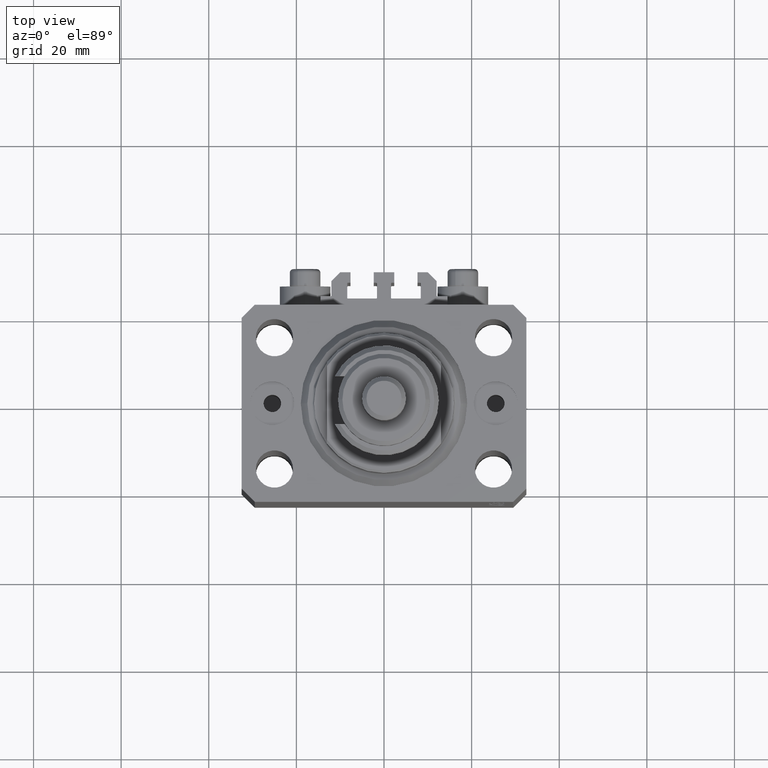
[diagram: clean part render]
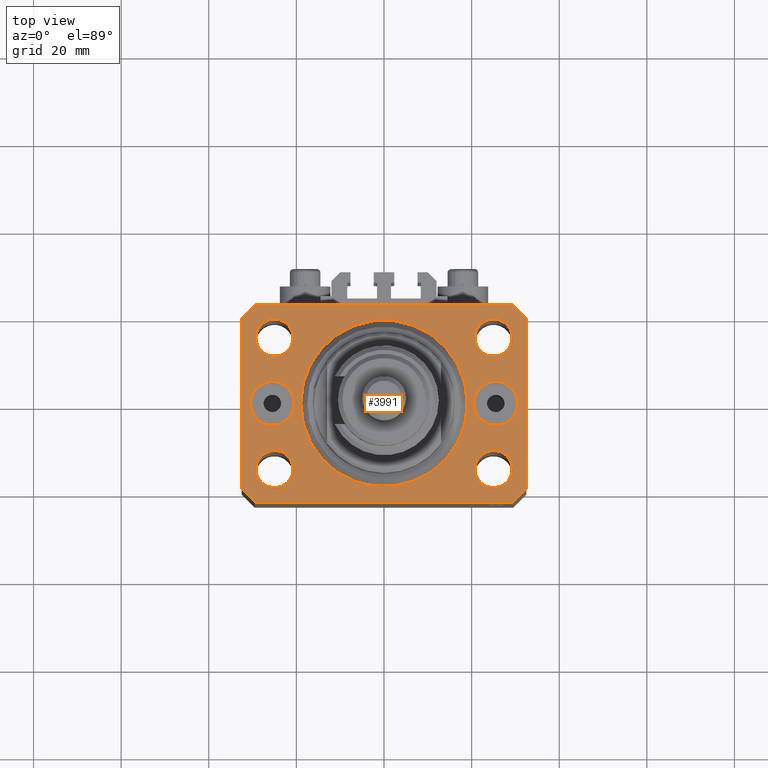
[diagram: same view with one face highlighted and labeled with its STEP entity id]
A machine part, top view. The second image highlights one B-rep face of the part: STEP entity #3991.
In plain terms, the highlighted planar face has unit normal (0, 0, 1).
Its self-contained STEP definition (entity closure, byte-faithful):
#62 = CARTESIAN_POINT ( 'NONE',  ( 24.99999999999999289, -15.00000000000000355, 0.000000000000000000 ) ) ;
#383 = LINE ( 'NONE', #4661, #46369 ) ;
#991 = FACE_BOUND ( 'NONE', #11088, .T. ) ;
#1139 = DIRECTION ( 'NONE',  ( 0.000000000000000000, 0.000000000000000000, 1.000000000000000000 ) ) ;
#1179 = EDGE_LOOP ( 'NONE', ( #25878, #42165 ) ) ;
#1402 = VERTEX_POINT ( 'NONE', #41577 ) ;
#1626 = DIRECTION ( 'NONE',  ( 0.000000000000000000, 0.000000000000000000, 1.000000000000000000 ) ) ;
#1692 = DIRECTION ( 'NONE',  ( -1.000000000000000000, -3.528251137580330676E-16, 0.000000000000000000 ) ) ;
#2006 = CIRCLE ( 'NONE', #43100, 4.250000000021375790 ) ;
#2138 = ORIENTED_EDGE ( 'NONE', *, *, #2377, .T. ) ;
#2377 = EDGE_CURVE ( 'NONE', #22399, #35281, #16061, .T. ) ;
#2657 = CIRCLE ( 'NONE', #35718, 4.249999999976314058 ) ;
#2756 = CARTESIAN_POINT ( 'NONE',  ( -20.74999999997862687, 14.99999999999999645, 0.000000000000000000 ) ) ;
#2982 = DIRECTION ( 'NONE',  ( 0.000000000000000000, 0.000000000000000000, 1.000000000000000000 ) ) ;
#3144 = AXIS2_PLACEMENT_3D ( 'NONE', #48257, #32815, #36100 ) ;
#3555 = EDGE_CURVE ( 'NONE', #5678, #45714, #2657, .T. ) ;
#3629 = CARTESIAN_POINT ( 'NONE',  ( -32.49999999999650413, -19.49999999999949907, 0.000000000000000000 ) ) ;
#3694 = EDGE_CURVE ( 'NONE', #45714, #5678, #24413, .T. ) ;
#3991 = ADVANCED_FACE ( 'NONE', ( #23225, #38668, #991, #32571, #17154, #32067, #43446, #20428 ), #16658, .T. ) ;
#4147 = DIRECTION ( 'NONE',  ( 0.000000000000000000, -0.000000000000000000, -1.000000000000000000 ) ) ;
#4450 = CARTESIAN_POINT ( 'NONE',  ( -29.49999999999650413, 22.49999999999949907, 0.000000000000000000 ) ) ;
#4661 = CARTESIAN_POINT ( 'NONE',  ( 32.49999999999651124, -19.49999999999949196, 0.000000000000000000 ) ) ;
#4893 = ORIENTED_EDGE ( 'NONE', *, *, #31744, .F. ) ;
#5361 = ORIENTED_EDGE ( 'NONE', *, *, #37109, .T. ) ;
#5675 = DIRECTION ( 'NONE',  ( 0.000000000000000000, -1.000000000000000000, 0.000000000000000000 ) ) ;
#5678 = VERTEX_POINT ( 'NONE', #31919 ) ;
#5787 = DIRECTION ( 'NONE',  ( 0.7071067811865483499, 0.7071067811865466846, 0.000000000000000000 ) ) ;
#6114 = CIRCLE ( 'NONE', #34351, 19.00000000000000000 ) ;
#6516 = DIRECTION ( 'NONE',  ( 1.000000000000000000, 0.000000000000000000, 0.000000000000000000 ) ) ;
#6607 = CIRCLE ( 'NONE', #45328, 4.250000000040370374 ) ;
#6843 = VERTEX_POINT ( 'NONE', #44894 ) ;
#7366 = VERTEX_POINT ( 'NONE', #18105 ) ;
#8295 = VERTEX_POINT ( 'NONE', #37826 ) ;
#8367 = DIRECTION ( 'NONE',  ( 1.000000000000000000, 0.000000000000000000, 0.000000000000000000 ) ) ;
#8445 = EDGE_CURVE ( 'NONE', #41649, #49494, #25383, .T. ) ;
#8931 = ORIENTED_EDGE ( 'NONE', *, *, #23326, .T. ) ;
#9117 = CIRCLE ( 'NONE', #16357, 5.000000000003342215 ) ;
#9327 = CARTESIAN_POINT ( 'NONE',  ( 29.24999999995729283, 14.99999999999999289, 0.000000000000000000 ) ) ;
#9508 = CARTESIAN_POINT ( 'NONE',  ( -19.00000000000000000, 2.326828918379970970E-15, 0.000000000000000000 ) ) ;
#9523 = CIRCLE ( 'NONE', #32942, 5.000000000003342215 ) ;
#9627 = VERTEX_POINT ( 'NONE', #17240 ) ;
#9725 = ORIENTED_EDGE ( 'NONE', *, *, #22989, .F. ) ;
#10425 = DIRECTION ( 'NONE',  ( 0.000000000000000000, 0.000000000000000000, 1.000000000000000000 ) ) ;
#10455 = DIRECTION ( 'NONE',  ( 1.000000000000000000, 0.000000000000000000, 0.000000000000000000 ) ) ;
#10630 = CARTESIAN_POINT ( 'NONE',  ( -30.50000000000333955, 6.123233995740857512E-16, 0.000000000000000000 ) ) ;
#11088 = EDGE_LOOP ( 'NONE', ( #41118, #28239 ) ) ;
#11191 = CIRCLE ( 'NONE', #3144, 19.00000000000000000 ) ;
#11502 = DIRECTION ( 'NONE',  ( 0.000000000000000000, -0.000000000000000000, -1.000000000000000000 ) ) ;
#11742 = ORIENTED_EDGE ( 'NONE', *, *, #43704, .F. ) ;
#11754 = CARTESIAN_POINT ( 'NONE',  ( 25.50000000000000000, 0.000000000000000000, 0.000000000000000000 ) ) ;
#11895 = VERTEX_POINT ( 'NONE', #26231 ) ;
#12370 = CARTESIAN_POINT ( 'NONE',  ( -20.74999999995962341, -15.00000000000000355, 0.000000000000000000 ) ) ;
#13051 = CARTESIAN_POINT ( 'NONE',  ( 29.49999999999707967, 22.49999999999952038, 0.000000000000000000 ) ) ;
#13055 = VERTEX_POINT ( 'NONE', #40951 ) ;
#13110 = DIRECTION ( 'NONE',  ( 1.000000000000000000, 0.000000000000000000, 0.000000000000000000 ) ) ;
#13376 = VERTEX_POINT ( 'NONE', #16874 ) ;
#13529 = ORIENTED_EDGE ( 'NONE', *, *, #47016, .F. ) ;
#13670 = EDGE_CURVE ( 'NONE', #6843, #15071, #35050, .T. ) ;
#14118 = AXIS2_PLACEMENT_3D ( 'NONE', #28951, #47671, #35773 ) ;
#15059 = AXIS2_PLACEMENT_3D ( 'NONE', #41545, #45089, #10455 ) ;
#15071 = VERTEX_POINT ( 'NONE', #12370 ) ;
#15472 = DIRECTION ( 'NONE',  ( 0.000000000000000000, 0.000000000000000000, 1.000000000000000000 ) ) ;
#15795 = DIRECTION ( 'NONE',  ( 1.000000000000000000, 0.000000000000000000, 0.000000000000000000 ) ) ;
#16061 = LINE ( 'NONE', #4450, #28397 ) ;
#16289 = VERTEX_POINT ( 'NONE', #28354 ) ;
#16357 = AXIS2_PLACEMENT_3D ( 'NONE', #30505, #45683, #19363 ) ;
#16603 = ORIENTED_EDGE ( 'NONE', *, *, #3555, .F. ) ;
#16658 = PLANE ( 'NONE',  #41362 ) ;
#16874 = CARTESIAN_POINT ( 'NONE',  ( 32.49999999999651124, -19.49999999999949196, 0.000000000000000000 ) ) ;
#16972 = ORIENTED_EDGE ( 'NONE', *, *, #24731, .F. ) ;
#17154 = FACE_BOUND ( 'NONE', #22194, .T. ) ;
#17155 = DIRECTION ( 'NONE',  ( 0.000000000000000000, 0.000000000000000000, 1.000000000000000000 ) ) ;
#17240 = CARTESIAN_POINT ( 'NONE',  ( -29.25000000002137668, 14.99999999999999645, 0.000000000000000000 ) ) ;
#18105 = CARTESIAN_POINT ( 'NONE',  ( -20.49999999999665690, 0.000000000000000000, 0.000000000000000000 ) ) ;
#18689 = CIRCLE ( 'NONE', #25148, 4.249999999957291053 ) ;
#19103 = CARTESIAN_POINT ( 'NONE',  ( 32.49999999999702993, 19.49999999999945999, 0.000000000000000000 ) ) ;
#19363 = DIRECTION ( 'NONE',  ( 1.000000000000000000, 0.000000000000000000, 0.000000000000000000 ) ) ;
#20213 = VECTOR ( 'NONE', #1692, 1000.000000000000000 ) ;
#20428 = FACE_BOUND ( 'NONE', #1179, .T. ) ;
#21028 = DIRECTION ( 'NONE',  ( 1.000000000000000000, 0.000000000000000000, 0.000000000000000000 ) ) ;
#21321 = CARTESIAN_POINT ( 'NONE',  ( 32.49999999999702993, 19.49999999999945999, 0.000000000000000000 ) ) ;
#22194 = EDGE_LOOP ( 'NONE', ( #11742, #41834 ) ) ;
#22399 = VERTEX_POINT ( 'NONE', #25340 ) ;
#22989 = EDGE_CURVE ( 'NONE', #16289, #23233, #11191, .T. ) ;
#23097 = CARTESIAN_POINT ( 'NONE',  ( 25.50000000000000000, 0.000000000000000000, 0.000000000000000000 ) ) ;
#23225 = FACE_OUTER_BOUND ( 'NONE', #32428, .T. ) ;
#23233 = VERTEX_POINT ( 'NONE', #9508 ) ;
#23326 = EDGE_CURVE ( 'NONE', #11895, #13055, #29951, .T. ) ;
#24097 = VECTOR ( 'NONE', #5787, 1000.000000000000000 ) ;
#24099 = CARTESIAN_POINT ( 'NONE',  ( 25.00000000000000000, 14.99999999999999289, 0.000000000000000000 ) ) ;
#24413 = CIRCLE ( 'NONE', #33318, 4.249999999976314058 ) ;
#24442 = EDGE_LOOP ( 'NONE', ( #16972, #13529 ) ) ;
#24731 = EDGE_CURVE ( 'NONE', #7366, #36887, #9523, .T. ) ;
#24980 = CARTESIAN_POINT ( 'NONE',  ( 29.49999999999650413, -22.49999999999949196, 0.000000000000000000 ) ) ;
#25148 = AXIS2_PLACEMENT_3D ( 'NONE', #24099, #1139, #35495 ) ;
#25340 = CARTESIAN_POINT ( 'NONE',  ( -29.49999999999650413, 22.49999999999949907, 0.000000000000000000 ) ) ;
#25371 = CIRCLE ( 'NONE', #27761, 4.249999999957291053 ) ;
#25383 = LINE ( 'NONE', #21321, #27763 ) ;
#25715 = CARTESIAN_POINT ( 'NONE',  ( 25.00000000000000000, 14.99999999999999289, 0.000000000000000000 ) ) ;
#25878 = ORIENTED_EDGE ( 'NONE', *, *, #40405, .T. ) ;
#25909 = CARTESIAN_POINT ( 'NONE',  ( -29.49999999999650413, -22.49999999999949907, 0.000000000000000000 ) ) ;
#25971 = EDGE_LOOP ( 'NONE', ( #48247, #4893 ) ) ;
#26080 = CARTESIAN_POINT ( 'NONE',  ( 20.75000000004271072, 14.99999999999999289, 0.000000000000000000 ) ) ;
#26231 = CARTESIAN_POINT ( 'NONE',  ( -29.49999999999650413, -22.49999999999949907, 0.000000000000000000 ) ) ;
#26948 = DIRECTION ( 'NONE',  ( -0.7071067811865474617, -0.7071067811865474617, 0.000000000000000000 ) ) ;
#27332 = ORIENTED_EDGE ( 'NONE', *, *, #41467, .T. ) ;
#27761 = AXIS2_PLACEMENT_3D ( 'NONE', #25715, #36346, #6516 ) ;
#27763 = VECTOR ( 'NONE', #36516, 1000.000000000000000 ) ;
#28239 = ORIENTED_EDGE ( 'NONE', *, *, #34856, .F. ) ;
#28354 = CARTESIAN_POINT ( 'NONE',  ( 19.00000000000000000, 0.000000000000000000, 0.000000000000000000 ) ) ;
#28397 = VECTOR ( 'NONE', #26948, 1000.000000000000114 ) ;
#28951 = CARTESIAN_POINT ( 'NONE',  ( -24.99999999999999289, -15.00000000000000355, 0.000000000000000000 ) ) ;
#29162 = CARTESIAN_POINT ( 'NONE',  ( -25.00000000000000000, 14.99999999999999645, 0.000000000000000000 ) ) ;
#29630 = CARTESIAN_POINT ( 'NONE',  ( -25.50000000000000000, 0.000000000000000000, 0.000000000000000000 ) ) ;
#29951 = LINE ( 'NONE', #25909, #34624 ) ;
#30410 = DIRECTION ( 'NONE',  ( 0.7071067811865474617, -0.7071067811865474617, 0.000000000000000000 ) ) ;
#30505 = CARTESIAN_POINT ( 'NONE',  ( -25.50000000000000000, 0.000000000000000000, 0.000000000000000000 ) ) ;
#30770 = VECTOR ( 'NONE', #5675, 1000.000000000000000 ) ;
#30879 = DIRECTION ( 'NONE',  ( 1.000000000000000000, 0.000000000000000000, 0.000000000000000000 ) ) ;
#31225 = ORIENTED_EDGE ( 'NONE', *, *, #50055, .T. ) ;
#31361 = EDGE_CURVE ( 'NONE', #23233, #16289, #6114, .T. ) ;
#31687 = DIRECTION ( 'NONE',  ( 1.334402673828349134E-14, 1.000000000000000000, 0.000000000000000000 ) ) ;
#31744 = EDGE_CURVE ( 'NONE', #9627, #38039, #40055, .T. ) ;
#31813 = CARTESIAN_POINT ( 'NONE',  ( 0.000000000000000000, 0.000000000000000000, 0.000000000000000000 ) ) ;
#31919 = CARTESIAN_POINT ( 'NONE',  ( 29.24999999997631051, -15.00000000000000355, 0.000000000000000000 ) ) ;
#31943 = ORIENTED_EDGE ( 'NONE', *, *, #8445, .T. ) ;
#32067 = FACE_BOUND ( 'NONE', #35917, .T. ) ;
#32428 = EDGE_LOOP ( 'NONE', ( #27332, #2138, #47399, #48718, #8931, #5361, #31225, #31943 ) ) ;
#32507 = VECTOR ( 'NONE', #30410, 1000.000000000000114 ) ;
#32567 = LINE ( 'NONE', #24980, #24097 ) ;
#32571 = FACE_BOUND ( 'NONE', #41167, .T. ) ;
#32815 = DIRECTION ( 'NONE',  ( 0.000000000000000000, 0.000000000000000000, 1.000000000000000000 ) ) ;
#32942 = AXIS2_PLACEMENT_3D ( 'NONE', #29630, #10425, #21028 ) ;
#33199 = AXIS2_PLACEMENT_3D ( 'NONE', #11754, #11502, #15795 ) ;
#33318 = AXIS2_PLACEMENT_3D ( 'NONE', #62, #15472, #30879 ) ;
#34351 = AXIS2_PLACEMENT_3D ( 'NONE', #48022, #17155, #13110 ) ;
#34624 = VECTOR ( 'NONE', #41339, 1000.000000000000000 ) ;
#34856 = EDGE_CURVE ( 'NONE', #39695, #37240, #25371, .T. ) ;
#34917 = CARTESIAN_POINT ( 'NONE',  ( 24.99999999999999289, -15.00000000000000355, 0.000000000000000000 ) ) ;
#34924 = LINE ( 'NONE', #3629, #32507 ) ;
#35050 = CIRCLE ( 'NONE', #14118, 4.250000000040370374 ) ;
#35062 = ORIENTED_EDGE ( 'NONE', *, *, #3694, .F. ) ;
#35281 = VERTEX_POINT ( 'NONE', #38280 ) ;
#35495 = DIRECTION ( 'NONE',  ( 1.000000000000000000, 0.000000000000000000, 0.000000000000000000 ) ) ;
#35718 = AXIS2_PLACEMENT_3D ( 'NONE', #34917, #42753, #8367 ) ;
#35773 = DIRECTION ( 'NONE',  ( 1.000000000000000000, 0.000000000000000000, 0.000000000000000000 ) ) ;
#35917 = EDGE_LOOP ( 'NONE', ( #9725, #38589 ) ) ;
#36100 = DIRECTION ( 'NONE',  ( 1.000000000000000000, 0.000000000000000000, 0.000000000000000000 ) ) ;
#36346 = DIRECTION ( 'NONE',  ( 0.000000000000000000, 0.000000000000000000, 1.000000000000000000 ) ) ;
#36368 = DIRECTION ( 'NONE',  ( 1.000000000000000000, 0.000000000000000000, -0.000000000000000000 ) ) ;
#36516 = DIRECTION ( 'NONE',  ( -0.7071067811865344721, 0.7071067811865606734, 0.000000000000000000 ) ) ;
#36887 = VERTEX_POINT ( 'NONE', #10630 ) ;
#37011 = CARTESIAN_POINT ( 'NONE',  ( -32.49999999999650413, 19.49999999999949907, 0.000000000000000000 ) ) ;
#37109 = EDGE_CURVE ( 'NONE', #13055, #13376, #32567, .T. ) ;
#37175 = AXIS2_PLACEMENT_3D ( 'NONE', #23097, #4147, #43303 ) ;
#37240 = VERTEX_POINT ( 'NONE', #9327 ) ;
#37605 = CARTESIAN_POINT ( 'NONE',  ( -24.99999999999999289, -15.00000000000000355, 0.000000000000000000 ) ) ;
#37826 = CARTESIAN_POINT ( 'NONE',  ( 20.49999999999665690, 6.123233995740857512E-16, 0.000000000000000000 ) ) ;
#38039 = VERTEX_POINT ( 'NONE', #2756 ) ;
#38280 = CARTESIAN_POINT ( 'NONE',  ( -32.49999999999650413, 19.49999999999949907, 0.000000000000000000 ) ) ;
#38589 = ORIENTED_EDGE ( 'NONE', *, *, #31361, .F. ) ;
#38668 = FACE_BOUND ( 'NONE', #25971, .T. ) ;
#39695 = VERTEX_POINT ( 'NONE', #26080 ) ;
#40055 = CIRCLE ( 'NONE', #15059, 4.250000000021375790 ) ;
#40298 = LINE ( 'NONE', #37011, #30770 ) ;
#40405 = EDGE_CURVE ( 'NONE', #47883, #8295, #46823, .T. ) ;
#40951 = CARTESIAN_POINT ( 'NONE',  ( 29.49999999999650413, -22.49999999999949196, 0.000000000000000000 ) ) ;
#41118 = ORIENTED_EDGE ( 'NONE', *, *, #42681, .F. ) ;
#41167 = EDGE_LOOP ( 'NONE', ( #16603, #35062 ) ) ;
#41339 = DIRECTION ( 'NONE',  ( 1.000000000000000000, 1.176083712526788232E-16, 0.000000000000000000 ) ) ;
#41362 = AXIS2_PLACEMENT_3D ( 'NONE', #31813, #43960, #36368 ) ;
#41467 = EDGE_CURVE ( 'NONE', #49494, #22399, #47187, .T. ) ;
#41540 = CARTESIAN_POINT ( 'NONE',  ( 29.49999999999707967, 22.49999999999952038, 0.000000000000000000 ) ) ;
#41545 = CARTESIAN_POINT ( 'NONE',  ( -25.00000000000000000, 14.99999999999999645, 0.000000000000000000 ) ) ;
#41569 = EDGE_CURVE ( 'NONE', #8295, #47883, #47753, .T. ) ;
#41577 = CARTESIAN_POINT ( 'NONE',  ( -32.49999999999650413, -19.49999999999949907, 0.000000000000000000 ) ) ;
#41649 = VERTEX_POINT ( 'NONE', #19103 ) ;
#41834 = ORIENTED_EDGE ( 'NONE', *, *, #13670, .F. ) ;
#41939 = EDGE_CURVE ( 'NONE', #35281, #1402, #40298, .T. ) ;
#42165 = ORIENTED_EDGE ( 'NONE', *, *, #41569, .T. ) ;
#42681 = EDGE_CURVE ( 'NONE', #37240, #39695, #18689, .T. ) ;
#42753 = DIRECTION ( 'NONE',  ( 0.000000000000000000, 0.000000000000000000, 1.000000000000000000 ) ) ;
#43100 = AXIS2_PLACEMENT_3D ( 'NONE', #29162, #1626, #47629 ) ;
#43303 = DIRECTION ( 'NONE',  ( 1.000000000000000000, 0.000000000000000000, 0.000000000000000000 ) ) ;
#43446 = FACE_BOUND ( 'NONE', #24442, .T. ) ;
#43704 = EDGE_CURVE ( 'NONE', #15071, #6843, #6607, .T. ) ;
#43960 = DIRECTION ( 'NONE',  ( 0.000000000000000000, 0.000000000000000000, 1.000000000000000000 ) ) ;
#44337 = CARTESIAN_POINT ( 'NONE',  ( 20.75000000002367884, -15.00000000000000355, 0.000000000000000000 ) ) ;
#44894 = CARTESIAN_POINT ( 'NONE',  ( -29.25000000004036593, -15.00000000000000355, 0.000000000000000000 ) ) ;
#45089 = DIRECTION ( 'NONE',  ( 0.000000000000000000, 0.000000000000000000, 1.000000000000000000 ) ) ;
#45328 = AXIS2_PLACEMENT_3D ( 'NONE', #37605, #2982, #49242 ) ;
#45683 = DIRECTION ( 'NONE',  ( 0.000000000000000000, 0.000000000000000000, 1.000000000000000000 ) ) ;
#45714 = VERTEX_POINT ( 'NONE', #44337 ) ;
#45828 = EDGE_CURVE ( 'NONE', #1402, #11895, #34924, .T. ) ;
#46369 = VECTOR ( 'NONE', #31687, 1000.000000000000000 ) ;
#46823 = CIRCLE ( 'NONE', #37175, 5.000000000003342215 ) ;
#47016 = EDGE_CURVE ( 'NONE', #36887, #7366, #9117, .T. ) ;
#47187 = LINE ( 'NONE', #13051, #20213 ) ;
#47399 = ORIENTED_EDGE ( 'NONE', *, *, #41939, .T. ) ;
#47629 = DIRECTION ( 'NONE',  ( 1.000000000000000000, 0.000000000000000000, 0.000000000000000000 ) ) ;
#47671 = DIRECTION ( 'NONE',  ( 0.000000000000000000, 0.000000000000000000, 1.000000000000000000 ) ) ;
#47744 = CARTESIAN_POINT ( 'NONE',  ( 30.50000000000333955, 0.000000000000000000, 0.000000000000000000 ) ) ;
#47753 = CIRCLE ( 'NONE', #33199, 5.000000000003342215 ) ;
#47883 = VERTEX_POINT ( 'NONE', #47744 ) ;
#48022 = CARTESIAN_POINT ( 'NONE',  ( 0.000000000000000000, 0.000000000000000000, 0.000000000000000000 ) ) ;
#48247 = ORIENTED_EDGE ( 'NONE', *, *, #49390, .F. ) ;
#48257 = CARTESIAN_POINT ( 'NONE',  ( 0.000000000000000000, 0.000000000000000000, 0.000000000000000000 ) ) ;
#48718 = ORIENTED_EDGE ( 'NONE', *, *, #45828, .T. ) ;
#49242 = DIRECTION ( 'NONE',  ( 1.000000000000000000, 0.000000000000000000, 0.000000000000000000 ) ) ;
#49390 = EDGE_CURVE ( 'NONE', #38039, #9627, #2006, .T. ) ;
#49494 = VERTEX_POINT ( 'NONE', #41540 ) ;
#50055 = EDGE_CURVE ( 'NONE', #13376, #41649, #383, .T. ) ;